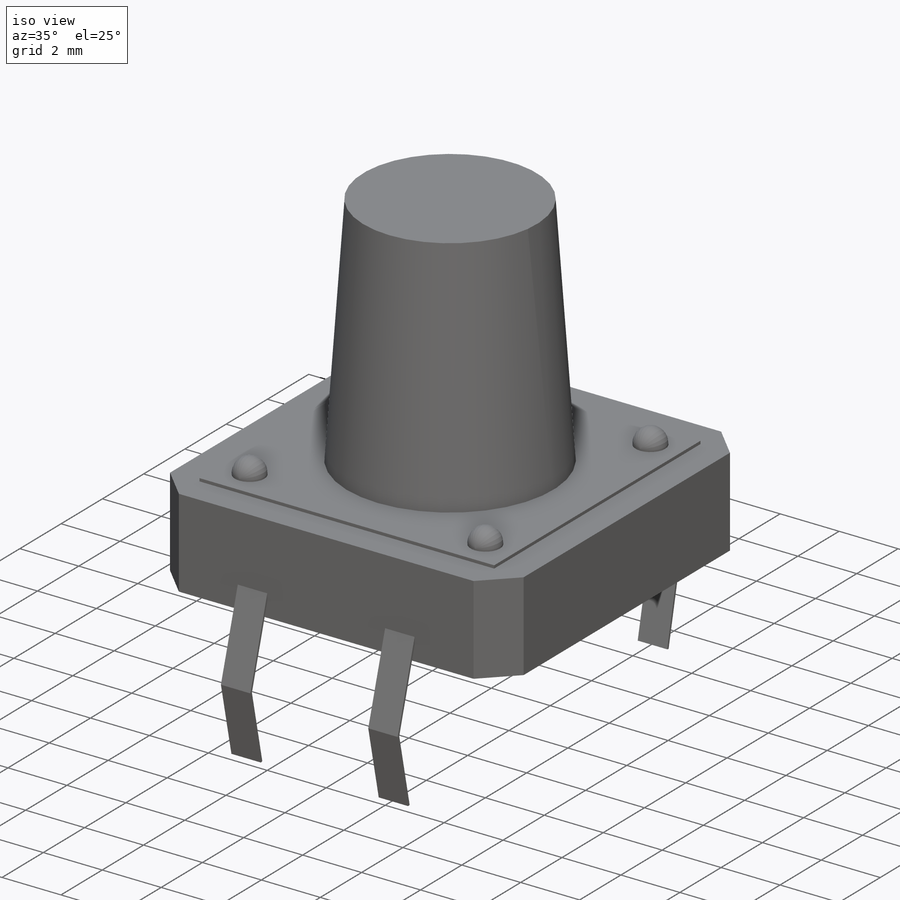
[diagram: iso view]
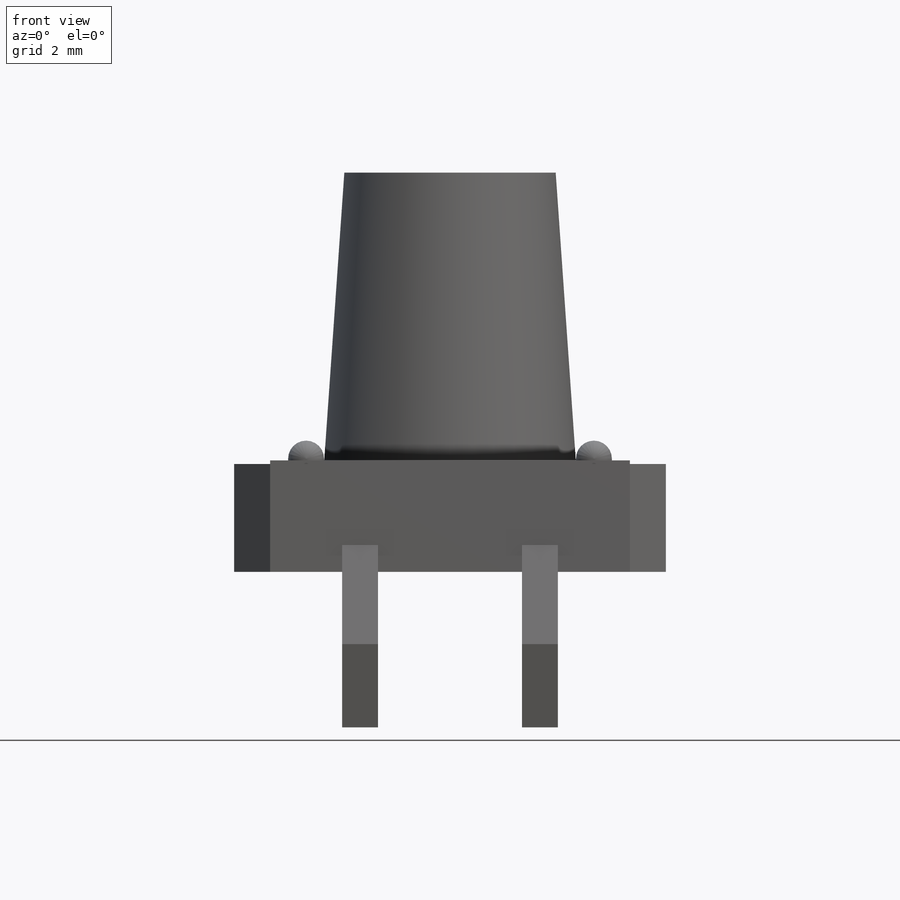
[diagram: front view]
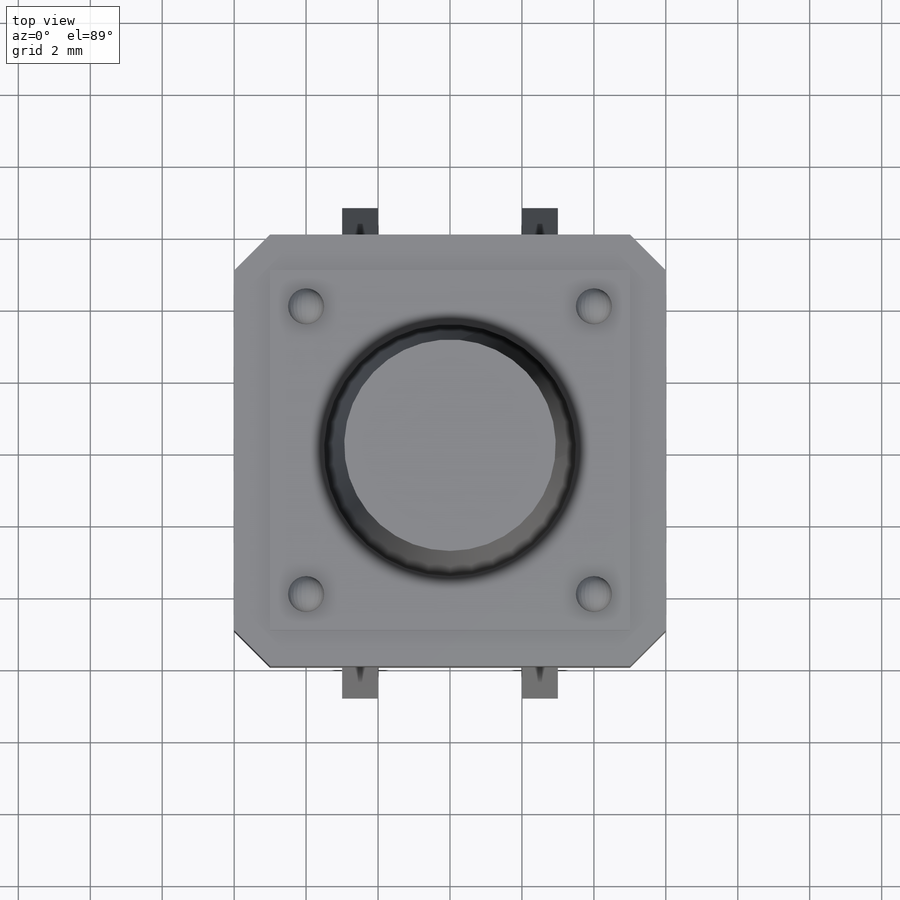
[diagram: top view]
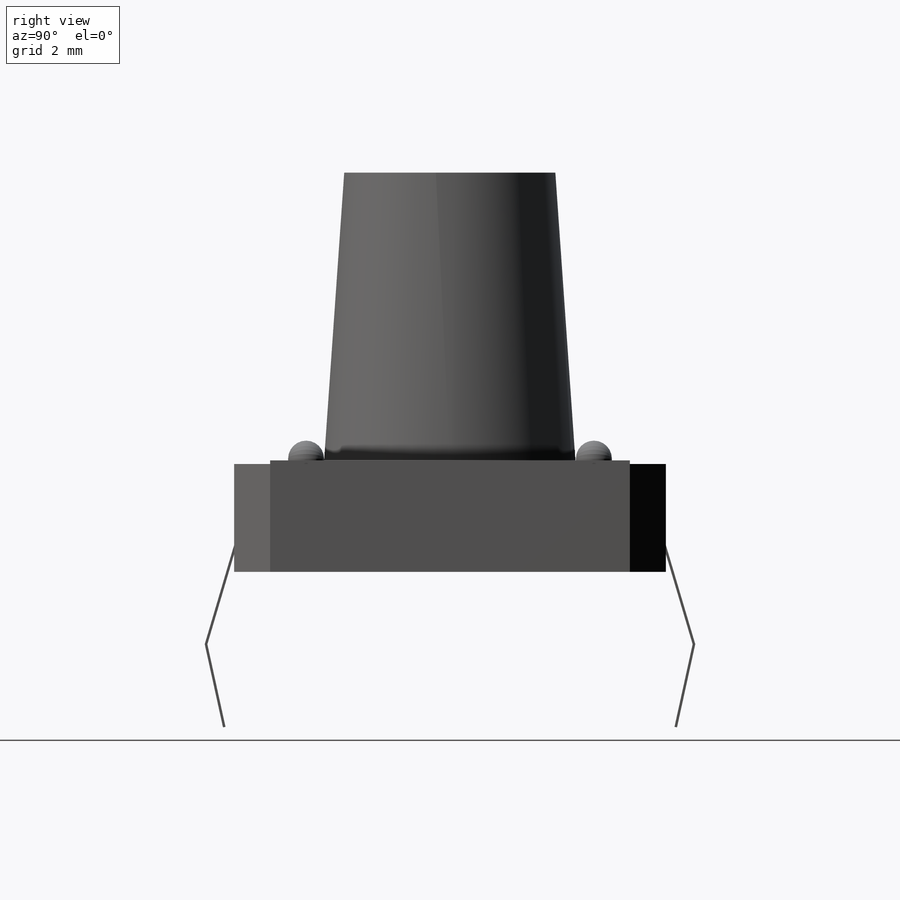
[diagram: right view]
SOLIDWORKS PART (.sldprt)
format: sldprt  version: not decoded by parser v0  size: 292,352 bytes
history: native  units: mm
features: sketch x6, extrude x4, material x1, chamfer x1, dome x1, pattern_linear x1, sweep x1, mirror x1 (+11 scaffold rows collapsed)
feature tree (27):
  scaffold x11  (default folders/planes/origin — collapsed)
  material  "Material <not specified>"
  sketch  "Sketch1"  dims[c1.D1=~19.478283mm c1.D2=~19.080767mm c2.D1=12.0mm c2.D2=12.0mm]
  extrude  "Boss-Extrude1"  Depth=3mm
  chamfer  "Chamfer1"  Distance=1mm Angle=45deg
  sketch  "Sketch2"  dims[c1.D1=10.0mm c1.D2=10.0mm c2.D1=10.0mm c2.D2=10.0mm]
  extrude  "Boss-Extrude2"  Depth=0.1mm
  sketch  "Sketch3"  dims[D1=1.0mm D2=1.0mm D3=1.0mm]
  extrude  "Boss-Extrude3"  Depth=0.05mm
  dome  "Dome1"
  pattern_linear  "LPattern1"  Count1=2 Count2=2 Spacing1=8mm Spacing2=8mm
  sketch  "Sketch4"  dims[D1=7.0mm]
  extrude  "Boss-Extrude4"  Depth=8mm
  sketch  "Sketch6"  dims[c1.D1=~0.49958mm c1.D2=~0.99916mm c2.D1=0.5mm c2.D2=2.0mm c2.D3=1.0mm c2.D4=0.25mm c2.D5=3.0mm]
  sketch  "Sketch7"  dims[D1=2.0mm D2=0.5mm]
  sweep  "Sweep1"
  mirror  "Mirror1"
decode coverage: 12 of 15 modeling features carry decoded parameters
note: ~ marks probable driven/reference dimensions
note: suppression state not decoded; provenance and decode notes live in map.json
